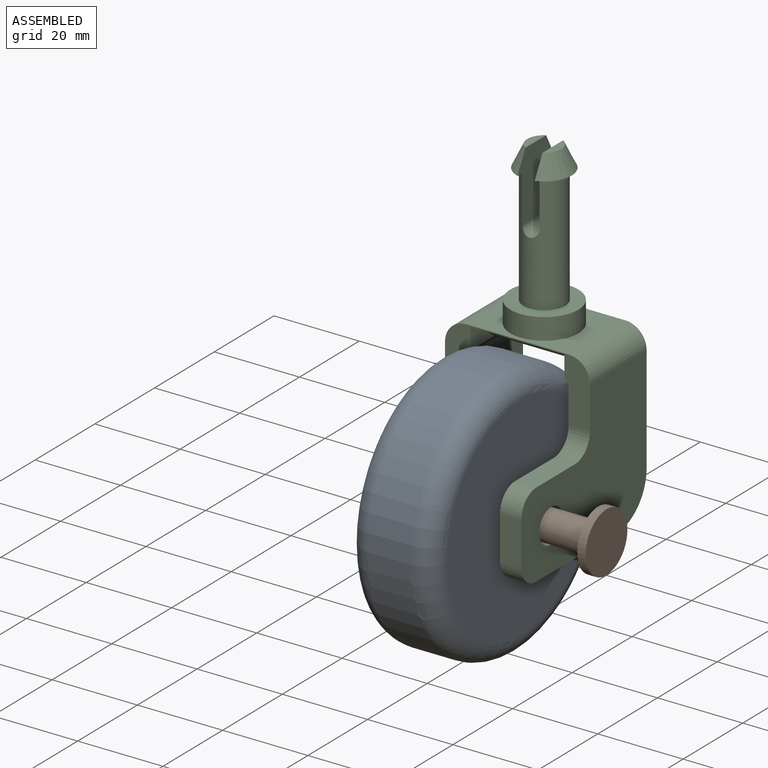
[diagram: assembled view]
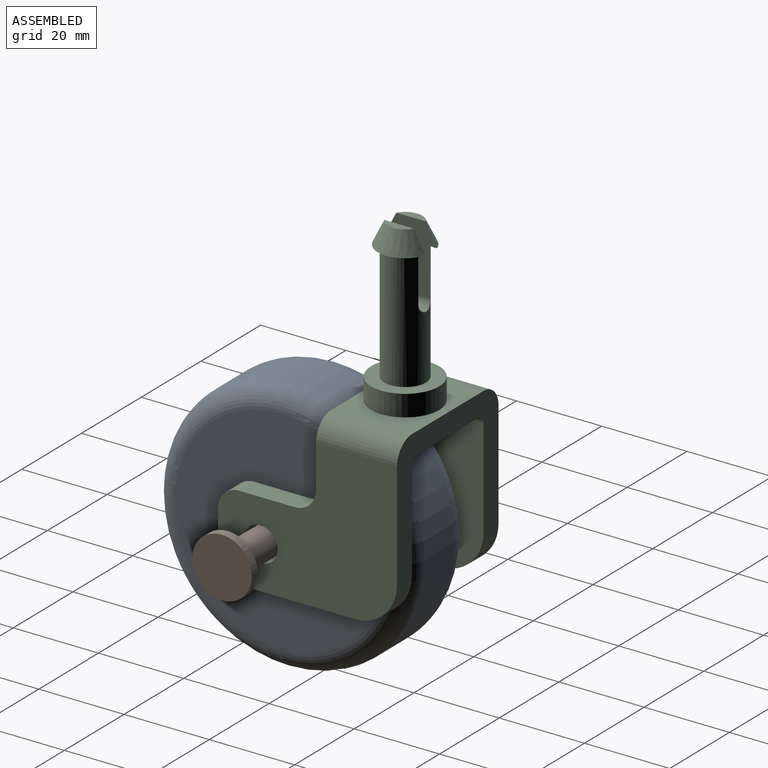
[diagram: assembled view, second angle]
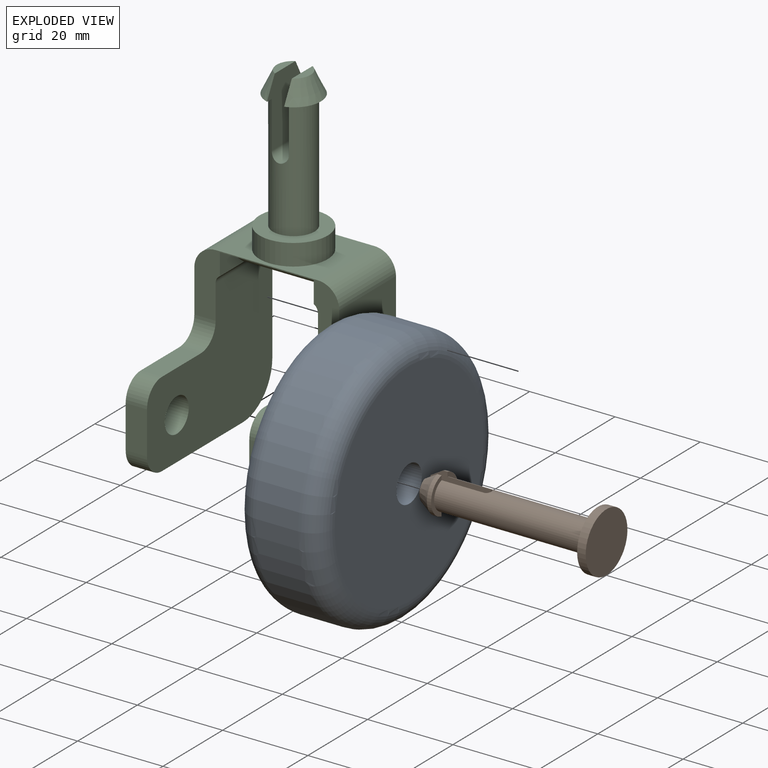
[diagram: exploded view]
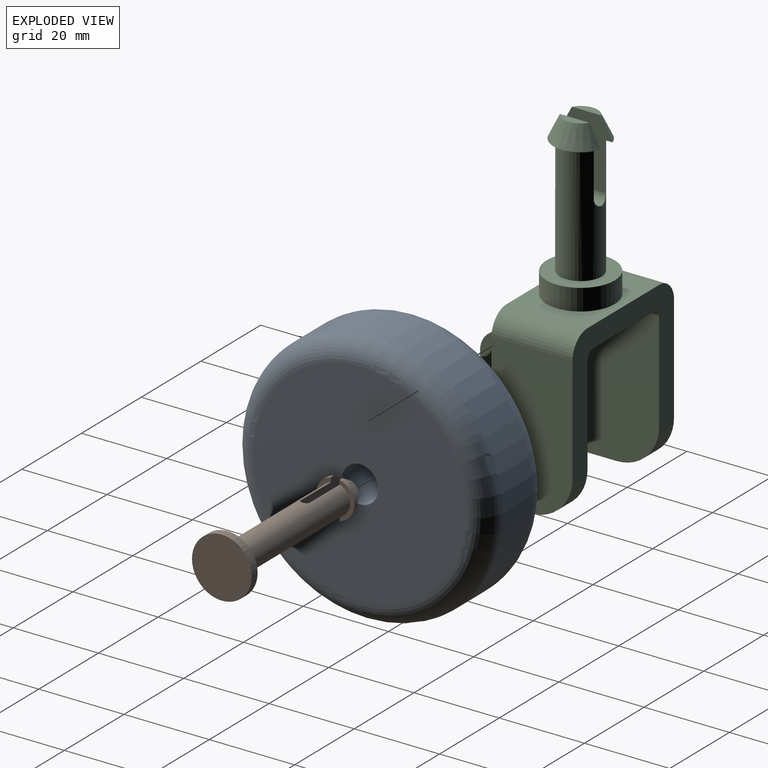
[diagram: exploded view, second angle]
ASSEMBLY  parts=3 mates=2
PART A: 6 faces, bbox 64.9x20x64.9 mm
  f0: cylinder r=4.25mm len=20mm, axis (0,1,0), area 534.1mm2, adj f2,f3
  f1: cylinder r=30mm len=60mm, axis (0,1,0), area 1885mm2, adj f4,f5
  f2: plane 50x50mm, normal (0,-1,0), area 1906.8mm2, adj f0,f5
  f3: plane 50x50mm, normal (0,1,0), area 1906.8mm2, adj f0,f4
  f4: torus R=25mm, axis (0,-1,0), area 1390.8mm2, adj f1,f3
  f5: torus R=25mm, axis (0,-1,0), area 1390.8mm2, adj f1,f2
PART B: 15 faces, bbox 14.1x42.1x14.1 mm
  f0: cylinder r=3.5mm len=36mm, axis (0,1,0), area 749.1mm2, adj f2,f7,f9,f12,f13,f14
  f1: cylinder r=4.5mm len=8.78mm, axis (0,1,0), area 12.1mm2, adj f2,f4,f12
  f2: plane 8.78x3.5mm, normal (0,1,0), area 10.5mm2, adj f0,f1,f12
  f3: plane 5.16x1.77mm, normal (0,-1,0), area 6.6mm2, adj f4,f12
  f4: cone r=2.77mm half-angle=30deg, axis (0,1,0), area 32.2mm2, adj f1,f3,f12
  f5: cylinder r=7mm len=14mm, axis (0,-1,0), area 88mm2, adj f6,f7
  f6: plane 14x14mm, normal (0,1,0), area 153.9mm2, adj f5
  f7: plane 14x14mm, normal (0,-1,0), area 115.5mm2, adj f0,f5
  f8: cylinder r=4.5mm len=8.78mm, axis (0,1,0), area 12.1mm2, adj f9,f11,f13
  f9: plane 8.78x3.5mm, normal (0,1,0), area 10.5mm2, adj f0,f8,f13
  f10: plane 5.16x1.77mm, normal (0,-1,0), area 6.6mm2, adj f11,f13
  f11: cone r=2.77mm half-angle=30deg, axis (0,1,0), area 32.2mm2, adj f8,f10,f13
  f12: plane 14.13x8.91mm, normal (-1,0,0), area 96.8mm2, adj f0,f1,f2,f3,f4,f14
  f13: plane 14.13x8.91mm, normal (1,0,0), area 96.8mm2, adj f0,f8,f9,f10,f11,f14
  f14: cylinder r=1mm len=7mm, axis (0,0,1), area 21.5mm2, adj f0,f12,f13
PART C: 43 faces, bbox 42.3x34.3x78.3 mm
  f0: plane 6.93x2mm, normal (0,0,1), area 9.8mm2, adj f3,f40
  f1: cylinder r=4.9mm len=28mm, axis (0,0,1), area 758.6mm2, adj f2,f12,f15,f40,f41,f42
  f2: plane 12.16x4.4mm, normal (0,0,-1), area 20.5mm2, adj f1,f3,f40
  f3: cone r=6.4mm half-angle=25.6deg, axis (0,0,-1), area 66.8mm2, adj f0,f2,f40
  f4: plane 42x33mm, normal (0,1,0), area 1009.9mm2, adj f10,f18,f19,f20,f22,f23,f30,f31
  f5: plane 20x11.23mm, normal (0,0,-1), area 224.7mm2, adj f19,f25,f38,f39
  f6: plane 42x33mm, normal (0,-1,0), area 1009.9mm2, adj f9,f16,f19,f20,f21,f24,f28,f29
  f7: plane 42x35mm, normal (0,1,0), area 1047.9mm2, adj f9,f16,f19,f20,f21,f24,f28,f29
  f8: plane 42x35mm, normal (0,-1,0), area 1047.9mm2, adj f10,f18,f19,f20,f22,f23,f30,f31
  f9: plane 10x5mm, normal (1,0,0), area 50mm2, adj f6,f7,f29,f35
  f10: plane 10x5mm, normal (1,0,0), area 50mm2, adj f4,f8,f30,f34
  f11: plane 6.93x2mm, normal (0,0,1), area 9.8mm2, adj f13,f41
  f12: plane 12.16x4.4mm, normal (0,0,-1), area 20.5mm2, adj f1,f13,f41
  f13: cone r=6.4mm half-angle=25.6deg, axis (0,0,-1), area 66.8mm2, adj f11,f12,f41
  f14: cylinder r=8mm len=16mm, axis (0,0,-1), area 251.3mm2, adj f15,f17
  f15: plane 16x16mm, normal (0,0,1), area 125.6mm2, adj f1,f14
  f16: plane 27x5mm, normal (0,0,-1), area 135mm2, adj f6,f7,f35,f37
  f17: plane 24x19mm, normal (0,0,1), area 254.9mm2, adj f14,f19,f20,f32,f33
  f18: plane 27x5mm, normal (0,0,-1), area 135mm2, adj f4,f8,f34,f36
  f19: plane 34x30mm, normal (-1,0,0), area 411mm2, adj f4,f5,f6,f7,f8,f17,f32,f33
  f20: plane 34x15mm, normal (1,0,0), area 155.5mm2, adj f4,f6,f7,f8,f17,f25,f26,f27
  f21: plane 13x5mm, normal (0,0,1), area 65mm2, adj f6,f7,f28,f29
  f22: plane 13x5mm, normal (0,0,1), area 65mm2, adj f4,f8,f30,f31
  f23: cylinder r=4mm len=8mm, axis (0,1,0), area 125.7mm2, adj f4,f8
  f24: cylinder r=4mm len=8mm, axis (0,1,0), area 125.7mm2, adj f6,f7
  f25: cylinder r=32.5mm len=22mm, axis (0,1,0), area 201.8mm2, adj f5,f20,f26,f27,f38,f39
  f26: plane 8.09x5.05mm, normal (0,1,0), area 22.7mm2, adj f20,f25,f38
  f27: plane 8.09x5.05mm, normal (0,-1,0), area 22.7mm2, adj f20,f25,f39
  f28: cylinder r=5mm len=5mm, axis (0,-1,0), area 39.3mm2, adj f6,f7,f20,f21
  f29: cylinder r=5mm len=5mm, axis (0,-1,0), area 39.3mm2, adj f6,f7,f9,f21
  f30: cylinder r=5mm len=5mm, axis (0,-1,0), area 39.3mm2, adj f4,f8,f10,f22
  f31: cylinder r=5mm len=5mm, axis (0,-1,0), area 39.3mm2, adj f4,f8,f20,f22
  f32: cylinder r=5mm len=19mm, axis (1,0,0), area 149.2mm2, adj f7,f17,f19,f20
  f33: cylinder r=5mm len=19mm, axis (-1,0,0), area 149.2mm2, adj f8,f17,f19,f20
  f34: cylinder r=5mm len=5mm, axis (0,-1,0), area 39.3mm2, adj f4,f8,f10,f18
  f35: cylinder r=5mm len=5mm, axis (0,-1,0), area 39.3mm2, adj f6,f7,f9,f16
  f36: cylinder r=10mm len=10mm, axis (0,1,0), area 78.5mm2, adj f4,f8,f18,f19
  f37: cylinder r=10mm len=10mm, axis (0,1,0), area 78.5mm2, adj f6,f7,f16,f19
  f38: cylinder r=2mm len=19mm, axis (1,0,0), area 51.4mm2, adj f4,f5,f19,f20,f25,f26
  f39: cylinder r=2mm len=19mm, axis (-1,0,0), area 51.4mm2, adj f5,f6,f19,f20,f25,f27
  f40: plane 16.27x12.43mm, normal (0,1,0), area 146.3mm2, adj f0,f1,f2,f3,f42
  f41: plane 16.27x12.43mm, normal (0,-1,0), area 146.3mm2, adj f1,f11,f12,f13,f42
  f42: cylinder r=2mm len=9.8mm, axis (-1,0,0), area 58.9mm2, adj f1,f40,f41
PLACE A rot(axis=(0,0,-1),90deg) t=(-99.4,218.36,35.71)mm
PLACE B rot(axis=(0,0,-1),90deg) t=(-89.4,218.36,35.71)mm
PLACE C rot(axis=(0,0,-1),90deg) t=(-99.4,218.36,35.71)mm
MATE cylindrical A.f0 <-> B.f0  axis (1,0,0) through (-99.4,196.36,5.71)mm
MATE planar B.f10 <-> C.f23  axis (-1,0,0) through (-111.4,198.09,5.71)mm
